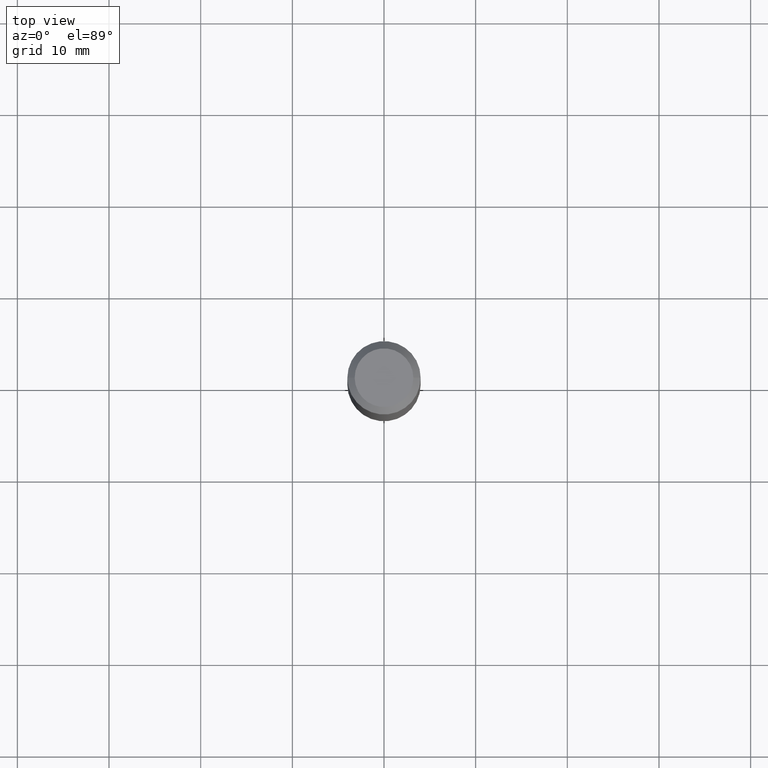
[diagram: clean part render]
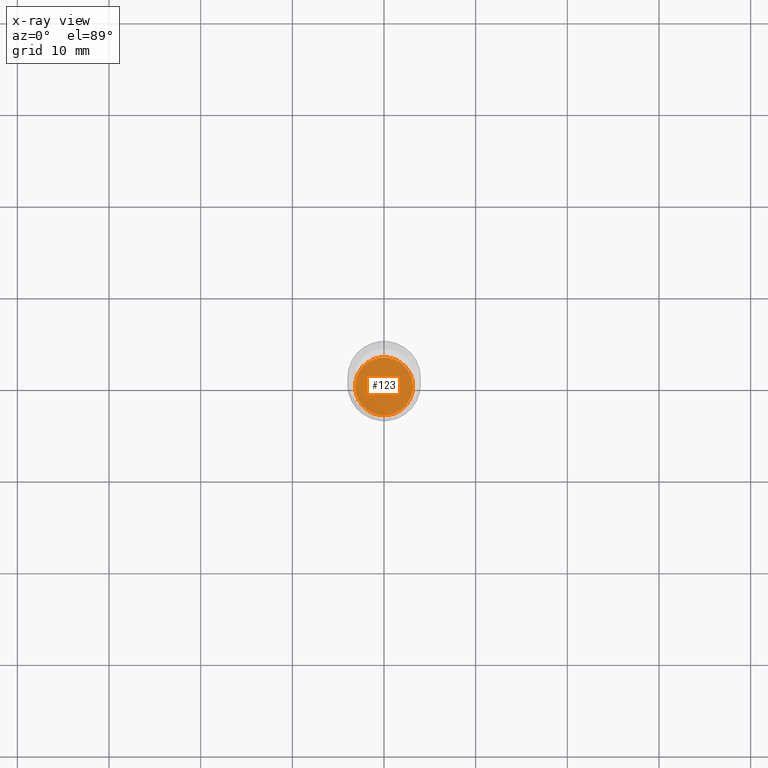
[diagram: x-ray — body ghosted, one internal face saturated and labeled with its STEP entity id]
A machine part, top view, then the same camera in x-ray: the body is ghosted and one INTERNAL B-rep face — a face not visible from any outside direction — is saturated and labeled: STEP entity #123.
In plain terms, the highlighted planar face has unit normal (-0, 0, 1).
Its self-contained STEP definition (entity closure, byte-faithful):
#27 = CARTESIAN_POINT ( 'NONE',  ( -0.1244999999999999996, -6.672829609801627587E-15, -2.165299999999999780 ) ) ;
#32 = VERTEX_POINT ( 'NONE', #131 ) ;
#123 = ADVANCED_FACE ( 'NONE', ( #168 ), #266, .F. ) ;
#131 = CARTESIAN_POINT ( 'NONE',  ( 0.1244999999999999996, -8.429483396369002665E-15, -2.165299999999999780 ) ) ;
#134 = AXIS2_PLACEMENT_3D ( 'NONE', #147, #418, #190 ) ;
#147 = CARTESIAN_POINT ( 'NONE',  ( 5.295173606032675561E-29, -7.560104542997063911E-15, -2.165299999999999780 ) ) ;
#168 = FACE_OUTER_BOUND ( 'NONE', #304, .T. ) ;
#185 = VERTEX_POINT ( 'NONE', #27 ) ;
#187 = AXIS2_PLACEMENT_3D ( 'NONE', #229, #310, #379 ) ;
#190 = DIRECTION ( 'NONE',  ( 1.000000000000000000, -6.982962677686266711E-15, 0.000000000000000000 ) ) ;
#212 = CIRCLE ( 'NONE', #134, 0.1244999999999999996 ) ;
#229 = CARTESIAN_POINT ( 'NONE',  ( 5.295173606032675561E-29, -7.560104542997063911E-15, -2.165299999999999780 ) ) ;
#266 = PLANE ( 'NONE',  #187 ) ;
#276 = AXIS2_PLACEMENT_3D ( 'NONE', #334, #482, #412 ) ;
#298 = ORIENTED_EDGE ( 'NONE', *, *, #393, .F. ) ;
#304 = EDGE_LOOP ( 'NONE', ( #298, #328 ) ) ;
#310 = DIRECTION ( 'NONE',  ( -2.438088387897960049E-29, 3.491481338843145188E-15, 1.000000000000000000 ) ) ;
#324 = EDGE_CURVE ( 'NONE', #185, #32, #212, .T. ) ;
#328 = ORIENTED_EDGE ( 'NONE', *, *, #324, .F. ) ;
#334 = CARTESIAN_POINT ( 'NONE',  ( 5.295173606032675561E-29, -7.560104542997063911E-15, -2.165299999999999780 ) ) ;
#379 = DIRECTION ( 'NONE',  ( 1.000000000000000000, -6.982962677686265922E-15, 4.876176775795935793E-29 ) ) ;
#393 = EDGE_CURVE ( 'NONE', #32, #185, #429, .T. ) ;
#412 = DIRECTION ( 'NONE',  ( 1.000000000000000000, -6.982962677686266711E-15, 0.000000000000000000 ) ) ;
#418 = DIRECTION ( 'NONE',  ( -2.445468806185136597E-29, 3.491481338843145583E-15, 1.000000000000000000 ) ) ;
#429 = CIRCLE ( 'NONE', #276, 0.1244999999999999996 ) ;
#482 = DIRECTION ( 'NONE',  ( -2.445468806185136597E-29, 3.491481338843145583E-15, 1.000000000000000000 ) ) ;